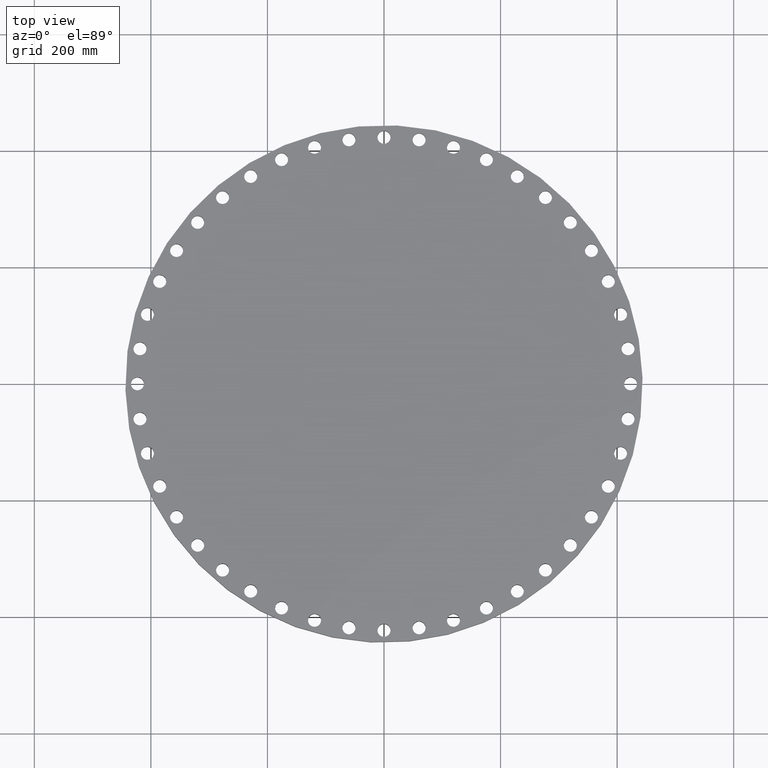
[diagram: clean part render]
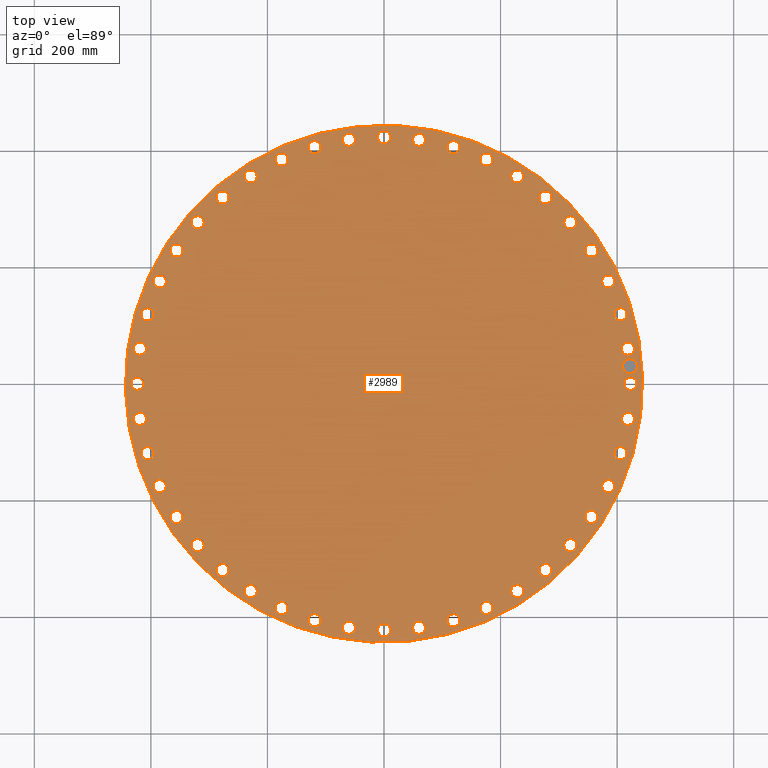
[diagram: same view with one face highlighted and labeled with its STEP entity id]
A machine part, top view. The second image highlights one B-rep face of the part: STEP entity #2989.
In plain terms, the highlighted planar face has unit normal (0, 0, -1).
Its self-contained STEP definition (entity closure, byte-faithful):
#65=AXIS2_PLACEMENT_3D('Circle Axis2P3D',#63,#64,$) ;
#82=AXIS2_PLACEMENT_3D('Circle Axis2P3D',#80,#81,$) ;
#115=AXIS2_PLACEMENT_3D('Circle Axis2P3D',#113,#114,$) ;
#139=AXIS2_PLACEMENT_3D('Circle Axis2P3D',#137,#138,$) ;
#958=AXIS2_PLACEMENT_3D('Circle Axis2P3D',#956,#957,$) ;
#970=AXIS2_PLACEMENT_3D('Circle Axis2P3D',#968,#969,$) ;
#1001=AXIS2_PLACEMENT_3D('Circle Axis2P3D',#999,#1000,$) ;
#1013=AXIS2_PLACEMENT_3D('Circle Axis2P3D',#1011,#1012,$) ;
#1044=AXIS2_PLACEMENT_3D('Circle Axis2P3D',#1042,#1043,$) ;
#1056=AXIS2_PLACEMENT_3D('Circle Axis2P3D',#1054,#1055,$) ;
#1087=AXIS2_PLACEMENT_3D('Circle Axis2P3D',#1085,#1086,$) ;
#1099=AXIS2_PLACEMENT_3D('Circle Axis2P3D',#1097,#1098,$) ;
#1130=AXIS2_PLACEMENT_3D('Circle Axis2P3D',#1128,#1129,$) ;
#1142=AXIS2_PLACEMENT_3D('Circle Axis2P3D',#1140,#1141,$) ;
#1173=AXIS2_PLACEMENT_3D('Circle Axis2P3D',#1171,#1172,$) ;
#1185=AXIS2_PLACEMENT_3D('Circle Axis2P3D',#1183,#1184,$) ;
#1216=AXIS2_PLACEMENT_3D('Circle Axis2P3D',#1214,#1215,$) ;
#1228=AXIS2_PLACEMENT_3D('Circle Axis2P3D',#1226,#1227,$) ;
#1259=AXIS2_PLACEMENT_3D('Circle Axis2P3D',#1257,#1258,$) ;
#1271=AXIS2_PLACEMENT_3D('Circle Axis2P3D',#1269,#1270,$) ;
#1302=AXIS2_PLACEMENT_3D('Circle Axis2P3D',#1300,#1301,$) ;
#1314=AXIS2_PLACEMENT_3D('Circle Axis2P3D',#1312,#1313,$) ;
#1345=AXIS2_PLACEMENT_3D('Circle Axis2P3D',#1343,#1344,$) ;
#1357=AXIS2_PLACEMENT_3D('Circle Axis2P3D',#1355,#1356,$) ;
#1388=AXIS2_PLACEMENT_3D('Circle Axis2P3D',#1386,#1387,$) ;
#1400=AXIS2_PLACEMENT_3D('Circle Axis2P3D',#1398,#1399,$) ;
#1431=AXIS2_PLACEMENT_3D('Circle Axis2P3D',#1429,#1430,$) ;
#1443=AXIS2_PLACEMENT_3D('Circle Axis2P3D',#1441,#1442,$) ;
#1474=AXIS2_PLACEMENT_3D('Circle Axis2P3D',#1472,#1473,$) ;
#1486=AXIS2_PLACEMENT_3D('Circle Axis2P3D',#1484,#1485,$) ;
#1517=AXIS2_PLACEMENT_3D('Circle Axis2P3D',#1515,#1516,$) ;
#1529=AXIS2_PLACEMENT_3D('Circle Axis2P3D',#1527,#1528,$) ;
#1560=AXIS2_PLACEMENT_3D('Circle Axis2P3D',#1558,#1559,$) ;
#1572=AXIS2_PLACEMENT_3D('Circle Axis2P3D',#1570,#1571,$) ;
#1603=AXIS2_PLACEMENT_3D('Circle Axis2P3D',#1601,#1602,$) ;
#1615=AXIS2_PLACEMENT_3D('Circle Axis2P3D',#1613,#1614,$) ;
#1646=AXIS2_PLACEMENT_3D('Circle Axis2P3D',#1644,#1645,$) ;
#1658=AXIS2_PLACEMENT_3D('Circle Axis2P3D',#1656,#1657,$) ;
#1689=AXIS2_PLACEMENT_3D('Circle Axis2P3D',#1687,#1688,$) ;
#1701=AXIS2_PLACEMENT_3D('Circle Axis2P3D',#1699,#1700,$) ;
#1732=AXIS2_PLACEMENT_3D('Circle Axis2P3D',#1730,#1731,$) ;
#1744=AXIS2_PLACEMENT_3D('Circle Axis2P3D',#1742,#1743,$) ;
#1775=AXIS2_PLACEMENT_3D('Circle Axis2P3D',#1773,#1774,$) ;
#1787=AXIS2_PLACEMENT_3D('Circle Axis2P3D',#1785,#1786,$) ;
#1818=AXIS2_PLACEMENT_3D('Circle Axis2P3D',#1816,#1817,$) ;
#1830=AXIS2_PLACEMENT_3D('Circle Axis2P3D',#1828,#1829,$) ;
#1861=AXIS2_PLACEMENT_3D('Circle Axis2P3D',#1859,#1860,$) ;
#1873=AXIS2_PLACEMENT_3D('Circle Axis2P3D',#1871,#1872,$) ;
#1904=AXIS2_PLACEMENT_3D('Circle Axis2P3D',#1902,#1903,$) ;
#1916=AXIS2_PLACEMENT_3D('Circle Axis2P3D',#1914,#1915,$) ;
#1947=AXIS2_PLACEMENT_3D('Circle Axis2P3D',#1945,#1946,$) ;
#1959=AXIS2_PLACEMENT_3D('Circle Axis2P3D',#1957,#1958,$) ;
#1990=AXIS2_PLACEMENT_3D('Circle Axis2P3D',#1988,#1989,$) ;
#2002=AXIS2_PLACEMENT_3D('Circle Axis2P3D',#2000,#2001,$) ;
#2033=AXIS2_PLACEMENT_3D('Circle Axis2P3D',#2031,#2032,$) ;
#2045=AXIS2_PLACEMENT_3D('Circle Axis2P3D',#2043,#2044,$) ;
#2076=AXIS2_PLACEMENT_3D('Circle Axis2P3D',#2074,#2075,$) ;
#2088=AXIS2_PLACEMENT_3D('Circle Axis2P3D',#2086,#2087,$) ;
#2119=AXIS2_PLACEMENT_3D('Circle Axis2P3D',#2117,#2118,$) ;
#2131=AXIS2_PLACEMENT_3D('Circle Axis2P3D',#2129,#2130,$) ;
#2162=AXIS2_PLACEMENT_3D('Circle Axis2P3D',#2160,#2161,$) ;
#2174=AXIS2_PLACEMENT_3D('Circle Axis2P3D',#2172,#2173,$) ;
#2205=AXIS2_PLACEMENT_3D('Circle Axis2P3D',#2203,#2204,$) ;
#2217=AXIS2_PLACEMENT_3D('Circle Axis2P3D',#2215,#2216,$) ;
#2248=AXIS2_PLACEMENT_3D('Circle Axis2P3D',#2246,#2247,$) ;
#2260=AXIS2_PLACEMENT_3D('Circle Axis2P3D',#2258,#2259,$) ;
#2291=AXIS2_PLACEMENT_3D('Circle Axis2P3D',#2289,#2290,$) ;
#2303=AXIS2_PLACEMENT_3D('Circle Axis2P3D',#2301,#2302,$) ;
#2334=AXIS2_PLACEMENT_3D('Circle Axis2P3D',#2332,#2333,$) ;
#2346=AXIS2_PLACEMENT_3D('Circle Axis2P3D',#2344,#2345,$) ;
#2377=AXIS2_PLACEMENT_3D('Circle Axis2P3D',#2375,#2376,$) ;
#2389=AXIS2_PLACEMENT_3D('Circle Axis2P3D',#2387,#2388,$) ;
#2420=AXIS2_PLACEMENT_3D('Circle Axis2P3D',#2418,#2419,$) ;
#2432=AXIS2_PLACEMENT_3D('Circle Axis2P3D',#2430,#2431,$) ;
#2463=AXIS2_PLACEMENT_3D('Circle Axis2P3D',#2461,#2462,$) ;
#2475=AXIS2_PLACEMENT_3D('Circle Axis2P3D',#2473,#2474,$) ;
#2506=AXIS2_PLACEMENT_3D('Circle Axis2P3D',#2504,#2505,$) ;
#2518=AXIS2_PLACEMENT_3D('Circle Axis2P3D',#2516,#2517,$) ;
#2549=AXIS2_PLACEMENT_3D('Circle Axis2P3D',#2547,#2548,$) ;
#2561=AXIS2_PLACEMENT_3D('Circle Axis2P3D',#2559,#2560,$) ;
#2592=AXIS2_PLACEMENT_3D('Circle Axis2P3D',#2590,#2591,$) ;
#2604=AXIS2_PLACEMENT_3D('Circle Axis2P3D',#2602,#2603,$) ;
#2635=AXIS2_PLACEMENT_3D('Circle Axis2P3D',#2633,#2634,$) ;
#2647=AXIS2_PLACEMENT_3D('Circle Axis2P3D',#2645,#2646,$) ;
#2678=AXIS2_PLACEMENT_3D('Circle Axis2P3D',#2676,#2677,$) ;
#2690=AXIS2_PLACEMENT_3D('Circle Axis2P3D',#2688,#2689,$) ;
#2721=AXIS2_PLACEMENT_3D('Circle Axis2P3D',#2719,#2720,$) ;
#2733=AXIS2_PLACEMENT_3D('Circle Axis2P3D',#2731,#2732,$) ;
#2764=AXIS2_PLACEMENT_3D('Circle Axis2P3D',#2762,#2763,$) ;
#2776=AXIS2_PLACEMENT_3D('Circle Axis2P3D',#2774,#2775,$) ;
#2789=AXIS2_PLACEMENT_3D('Plane Axis2P3D',#2786,#2787,#2788) ;
#2973=AXIS2_PLACEMENT_3D('Circle Axis2P3D',#2971,#2972,$) ;
#2982=AXIS2_PLACEMENT_3D('Circle Axis2P3D',#2980,#2981,$) ;
#46=CARTESIAN_POINT('Vertex',(16.2688636728,0.210947236987,1.94000000001)) ;
#60=CARTESIAN_POINT('Vertex',(17.0411363273,-0.210947236987,1.94000000001)) ;
#63=CARTESIAN_POINT('Axis2P3D Location',(16.6550000001,0.,1.94000000001)) ;
#80=CARTESIAN_POINT('Axis2P3D Location',(16.6550000001,0.,1.94000000001)) ;
#110=CARTESIAN_POINT('Vertex',(8.37556415945,15.3313673563,1.94000000001)) ;
#113=CARTESIAN_POINT('Axis2P3D Location',(0.,0.,1.94000000001)) ;
#117=CARTESIAN_POINT('Vertex',(-8.37556415945,-15.3313673563,1.94000000001)) ;
#137=CARTESIAN_POINT('Axis2P3D Location',(0.,0.,1.94000000001)) ;
#946=CARTESIAN_POINT('Vertex',(-16.1332910203,2.10650060421,1.94000000001)) ;
#953=CARTESIAN_POINT('Vertex',(-16.8376612089,2.63400665869,1.94000000001)) ;
#956=CARTESIAN_POINT('Axis2P3D Location',(-16.4854761146,2.37025363145,1.94000000001)) ;
#968=CARTESIAN_POINT('Axis2P3D Location',(-16.4854761146,2.37025363145,1.94000000001)) ;
#989=CARTESIAN_POINT('Vertex',(15.6692910872,-4.38106616776,1.94000000001)) ;
#996=CARTESIAN_POINT('Vertex',(16.291419864,-5.00344530067,1.94000000001)) ;
#999=CARTESIAN_POINT('Axis2P3D Location',(15.9803554756,-4.69225573421,1.94000000001)) ;
#1011=CARTESIAN_POINT('Axis2P3D Location',(15.9803554756,-4.69225573421,1.94000000001)) ;
#1032=CARTESIAN_POINT('Vertex',(-15.6692910872,4.38106616776,1.94000000001)) ;
#1039=CARTESIAN_POINT('Vertex',(-16.291419864,5.00344530067,1.94000000001)) ;
#1042=CARTESIAN_POINT('Axis2P3D Location',(-15.9803554756,4.69225573421,1.94000000001)) ;
#1054=CARTESIAN_POINT('Axis2P3D Location',(-15.9803554756,4.69225573421,1.94000000001)) ;
#1075=CARTESIAN_POINT('Vertex',(14.8863095741,-6.56644585808,1.94000000001)) ;
#1082=CARTESIAN_POINT('Vertex',(15.4135321913,-7.27102822507,1.94000000001)) ;
#1085=CARTESIAN_POINT('Axis2P3D Location',(15.1499208827,-6.91873704157,1.94000000001)) ;
#1097=CARTESIAN_POINT('Axis2P3D Location',(15.1499208827,-6.91873704157,1.94000000001)) ;
#1118=CARTESIAN_POINT('Vertex',(-14.8863095741,6.56644585808,1.94000000001)) ;
#1125=CARTESIAN_POINT('Vertex',(-15.4135321913,7.27102822507,1.94000000001)) ;
#1128=CARTESIAN_POINT('Axis2P3D Location',(-15.1499208827,6.91873704157,1.94000000001)) ;
#1140=CARTESIAN_POINT('Axis2P3D Location',(-15.1499208827,6.91873704157,1.94000000001)) ;
#1161=CARTESIAN_POINT('Vertex',(13.8002857266,-8.6181516468,1.94000000001)) ;
#1168=CARTESIAN_POINT('Vertex',(14.2218694522,-9.39059398272,1.94000000001)) ;
#1171=CARTESIAN_POINT('Axis2P3D Location',(14.0110775894,-9.00437281476,1.94000000001)) ;
#1183=CARTESIAN_POINT('Axis2P3D Location',(14.0110775894,-9.00437281476,1.94000000001)) ;
#1204=CARTESIAN_POINT('Vertex',(-13.8002857266,8.6181516468,1.94000000001)) ;
#1211=CARTESIAN_POINT('Vertex',(-14.2218694522,9.39059398272,1.94000000001)) ;
#1214=CARTESIAN_POINT('Axis2P3D Location',(-14.0110775894,9.00437281476,1.94000000001)) ;
#1226=CARTESIAN_POINT('Axis2P3D Location',(-14.0110775894,9.00437281476,1.94000000001)) ;
#1247=CARTESIAN_POINT('Vertex',(12.4333278584,-10.4944167207,1.94000000001)) ;
#1254=CARTESIAN_POINT('Vertex',(12.7406904634,-11.3189943271,1.94000000001)) ;
#1257=CARTESIAN_POINT('Axis2P3D Location',(12.5870091609,-10.9067055239,1.94000000001)) ;
#1269=CARTESIAN_POINT('Axis2P3D Location',(12.5870091609,-10.9067055239,1.94000000001)) ;
#1290=CARTESIAN_POINT('Vertex',(-12.4333278584,10.4944167207,1.94000000001)) ;
#1297=CARTESIAN_POINT('Vertex',(-12.7406904634,11.3189943271,1.94000000001)) ;
#1300=CARTESIAN_POINT('Axis2P3D Location',(-12.5870091609,10.9067055239,1.94000000001)) ;
#1312=CARTESIAN_POINT('Axis2P3D Location',(-12.5870091609,10.9067055239,1.94000000001)) ;
#1333=CARTESIAN_POINT('Vertex',(10.8132632898,-12.1570457335,1.94000000001)) ;
#1340=CARTESIAN_POINT('Vertex',(11.000147758,-13.0169725883,1.94000000001)) ;
#1343=CARTESIAN_POINT('Axis2P3D Location',(10.9067055239,-12.5870091609,1.94000000001)) ;
#1355=CARTESIAN_POINT('Axis2P3D Location',(10.9067055239,-12.5870091609,1.94000000001)) ;
#1376=CARTESIAN_POINT('Vertex',(-10.8132632898,12.1570457335,1.94000000001)) ;
#1383=CARTESIAN_POINT('Vertex',(-11.000147758,13.0169725883,1.94000000001)) ;
#1386=CARTESIAN_POINT('Axis2P3D Location',(-10.9067055239,12.5870091609,1.94000000001)) ;
#1398=CARTESIAN_POINT('Axis2P3D Location',(-10.9067055239,12.5870091609,1.94000000001)) ;
#1419=CARTESIAN_POINT('Vertex',(8.97307186351,-13.5721923533,1.94000000001)) ;
#1426=CARTESIAN_POINT('Vertex',(9.03567376601,-14.4499628254,1.94000000001)) ;
#1429=CARTESIAN_POINT('Axis2P3D Location',(9.00437281476,-14.0110775894,1.94000000001)) ;
#1441=CARTESIAN_POINT('Axis2P3D Location',(9.00437281476,-14.0110775894,1.94000000001)) ;
#1462=CARTESIAN_POINT('Vertex',(-8.97307186351,13.5721923533,1.94000000001)) ;
#1469=CARTESIAN_POINT('Vertex',(-9.03567376601,14.4499628254,1.94000000001)) ;
#1472=CARTESIAN_POINT('Axis2P3D Location',(-9.00437281476,14.0110775894,1.94000000001)) ;
#1484=CARTESIAN_POINT('Axis2P3D Location',(-9.00437281476,14.0110775894,1.94000000001)) ;
#1505=CARTESIAN_POINT('Vertex',(6.95021457027,-14.7110482757,1.94000000001)) ;
#1512=CARTESIAN_POINT('Vertex',(6.88725951288,-15.5887934897,1.94000000001)) ;
#1515=CARTESIAN_POINT('Axis2P3D Location',(6.91873704157,-15.1499208827,1.94000000001)) ;
#1527=CARTESIAN_POINT('Axis2P3D Location',(6.91873704157,-15.1499208827,1.94000000001)) ;
#1548=CARTESIAN_POINT('Vertex',(-6.95021457027,14.7110482757,1.94000000001)) ;
#1555=CARTESIAN_POINT('Vertex',(-6.88725951288,15.5887934897,1.94000000001)) ;
#1558=CARTESIAN_POINT('Axis2P3D Location',(-6.91873704157,15.1499208827,1.94000000001)) ;
#1570=CARTESIAN_POINT('Axis2P3D Location',(-6.91873704157,15.1499208827,1.94000000001)) ;
#1591=CARTESIAN_POINT('Vertex',(4.78587095114,-15.5504296783,1.94000000001)) ;
#1598=CARTESIAN_POINT('Vertex',(4.59864051728,-16.4102812729,1.94000000001)) ;
#1601=CARTESIAN_POINT('Axis2P3D Location',(4.69225573421,-15.9803554756,1.94000000001)) ;
#1613=CARTESIAN_POINT('Axis2P3D Location',(4.69225573421,-15.9803554756,1.94000000001)) ;
#1634=CARTESIAN_POINT('Vertex',(-4.78587095114,15.5504296783,1.94000000001)) ;
#1641=CARTESIAN_POINT('Vertex',(-4.59864051728,16.4102812729,1.94000000001)) ;
#1644=CARTESIAN_POINT('Axis2P3D Location',(-4.69225573421,15.9803554756,1.94000000001)) ;
#1656=CARTESIAN_POINT('Axis2P3D Location',(-4.69225573421,15.9803554756,1.94000000001)) ;
#1677=CARTESIAN_POINT('Vertex',(2.52410080076,-16.0732491765,1.94000000001)) ;
#1684=CARTESIAN_POINT('Vertex',(2.21640646214,-16.8977030527,1.94000000001)) ;
#1687=CARTESIAN_POINT('Axis2P3D Location',(2.37025363145,-16.4854761146,1.94000000001)) ;
#1699=CARTESIAN_POINT('Axis2P3D Location',(2.37025363145,-16.4854761146,1.94000000001)) ;
#1720=CARTESIAN_POINT('Vertex',(-2.52410080076,16.0732491765,1.94000000001)) ;
#1727=CARTESIAN_POINT('Vertex',(-2.21640646214,16.8977030527,1.94000000001)) ;
#1730=CARTESIAN_POINT('Axis2P3D Location',(-2.37025363145,16.4854761146,1.94000000001)) ;
#1742=CARTESIAN_POINT('Axis2P3D Location',(-2.37025363145,16.4854761146,1.94000000001)) ;
#1763=CARTESIAN_POINT('Vertex',(0.210947236987,-16.2688636728,1.94000000001)) ;
#1770=CARTESIAN_POINT('Vertex',(-0.210947236987,-17.0411363273,1.94000000001)) ;
#1773=CARTESIAN_POINT('Axis2P3D Location',(-1.21810525442E-015,-16.6550000001,1.94000000001)) ;
#1785=CARTESIAN_POINT('Axis2P3D Location',(-1.21810525442E-015,-16.6550000001,1.94000000001)) ;
#1806=CARTESIAN_POINT('Vertex',(-0.210947236987,16.2688636728,1.94000000001)) ;
#1813=CARTESIAN_POINT('Vertex',(0.210947236987,17.0411363273,1.94000000001)) ;
#1816=CARTESIAN_POINT('Axis2P3D Location',(-8.21543989572E-016,16.6550000001,1.94000000001)) ;
#1828=CARTESIAN_POINT('Axis2P3D Location',(-8.21543989572E-016,16.6550000001,1.94000000001)) ;
#1849=CARTESIAN_POINT('Vertex',(-2.10650060421,-16.1332910203,1.94000000001)) ;
#1856=CARTESIAN_POINT('Vertex',(-2.63400665869,-16.8376612089,1.94000000001)) ;
#1859=CARTESIAN_POINT('Axis2P3D Location',(-2.37025363145,-16.4854761146,1.94000000001)) ;
#1871=CARTESIAN_POINT('Axis2P3D Location',(-2.37025363145,-16.4854761146,1.94000000001)) ;
#1892=CARTESIAN_POINT('Vertex',(2.10650060421,16.1332910203,1.94000000001)) ;
#1899=CARTESIAN_POINT('Vertex',(2.63400665869,16.8376612089,1.94000000001)) ;
#1902=CARTESIAN_POINT('Axis2P3D Location',(2.37025363145,16.4854761146,1.94000000001)) ;
#1914=CARTESIAN_POINT('Axis2P3D Location',(2.37025363145,16.4854761146,1.94000000001)) ;
#1935=CARTESIAN_POINT('Vertex',(-4.38106616776,-15.6692910872,1.94000000001)) ;
#1942=CARTESIAN_POINT('Vertex',(-5.00344530067,-16.291419864,1.94000000001)) ;
#1945=CARTESIAN_POINT('Axis2P3D Location',(-4.69225573421,-15.9803554756,1.94000000001)) ;
#1957=CARTESIAN_POINT('Axis2P3D Location',(-4.69225573421,-15.9803554756,1.94000000001)) ;
#1978=CARTESIAN_POINT('Vertex',(4.38106616776,15.6692910872,1.94000000001)) ;
#1985=CARTESIAN_POINT('Vertex',(5.00344530067,16.291419864,1.94000000001)) ;
#1988=CARTESIAN_POINT('Axis2P3D Location',(4.69225573421,15.9803554756,1.94000000001)) ;
#2000=CARTESIAN_POINT('Axis2P3D Location',(4.69225573421,15.9803554756,1.94000000001)) ;
#2021=CARTESIAN_POINT('Vertex',(-6.56644585808,-14.8863095741,1.94000000001)) ;
#2028=CARTESIAN_POINT('Vertex',(-7.27102822507,-15.4135321913,1.94000000001)) ;
#2031=CARTESIAN_POINT('Axis2P3D Location',(-6.91873704157,-15.1499208827,1.94000000001)) ;
#2043=CARTESIAN_POINT('Axis2P3D Location',(-6.91873704157,-15.1499208827,1.94000000001)) ;
#2064=CARTESIAN_POINT('Vertex',(6.56644585808,14.8863095741,1.94000000001)) ;
#2071=CARTESIAN_POINT('Vertex',(7.27102822507,15.4135321913,1.94000000001)) ;
#2074=CARTESIAN_POINT('Axis2P3D Location',(6.91873704157,15.1499208827,1.94000000001)) ;
#2086=CARTESIAN_POINT('Axis2P3D Location',(6.91873704157,15.1499208827,1.94000000001)) ;
#2107=CARTESIAN_POINT('Vertex',(-8.6181516468,-13.8002857266,1.94000000001)) ;
#2114=CARTESIAN_POINT('Vertex',(-9.39059398272,-14.2218694522,1.94000000001)) ;
#2117=CARTESIAN_POINT('Axis2P3D Location',(-9.00437281476,-14.0110775894,1.94000000001)) ;
#2129=CARTESIAN_POINT('Axis2P3D Location',(-9.00437281476,-14.0110775894,1.94000000001)) ;
#2150=CARTESIAN_POINT('Vertex',(8.6181516468,13.8002857266,1.94000000001)) ;
#2157=CARTESIAN_POINT('Vertex',(9.39059398272,14.2218694522,1.94000000001)) ;
#2160=CARTESIAN_POINT('Axis2P3D Location',(9.00437281476,14.0110775894,1.94000000001)) ;
#2172=CARTESIAN_POINT('Axis2P3D Location',(9.00437281476,14.0110775894,1.94000000001)) ;
#2193=CARTESIAN_POINT('Vertex',(-10.4944167207,-12.4333278584,1.94000000001)) ;
#2200=CARTESIAN_POINT('Vertex',(-11.3189943271,-12.7406904634,1.94000000001)) ;
#2203=CARTESIAN_POINT('Axis2P3D Location',(-10.9067055239,-12.5870091609,1.94000000001)) ;
#2215=CARTESIAN_POINT('Axis2P3D Location',(-10.9067055239,-12.5870091609,1.94000000001)) ;
#2236=CARTESIAN_POINT('Vertex',(10.4944167207,12.4333278584,1.94000000001)) ;
#2243=CARTESIAN_POINT('Vertex',(11.3189943271,12.7406904634,1.94000000001)) ;
#2246=CARTESIAN_POINT('Axis2P3D Location',(10.9067055239,12.5870091609,1.94000000001)) ;
#2258=CARTESIAN_POINT('Axis2P3D Location',(10.9067055239,12.5870091609,1.94000000001)) ;
#2279=CARTESIAN_POINT('Vertex',(-12.1570457335,-10.8132632898,1.94000000001)) ;
#2286=CARTESIAN_POINT('Vertex',(-13.0169725883,-11.000147758,1.94000000001)) ;
#2289=CARTESIAN_POINT('Axis2P3D Location',(-12.5870091609,-10.9067055239,1.94000000001)) ;
#2301=CARTESIAN_POINT('Axis2P3D Location',(-12.5870091609,-10.9067055239,1.94000000001)) ;
#2322=CARTESIAN_POINT('Vertex',(12.1570457335,10.8132632898,1.94000000001)) ;
#2329=CARTESIAN_POINT('Vertex',(13.0169725883,11.000147758,1.94000000001)) ;
#2332=CARTESIAN_POINT('Axis2P3D Location',(12.5870091609,10.9067055239,1.94000000001)) ;
#2344=CARTESIAN_POINT('Axis2P3D Location',(12.5870091609,10.9067055239,1.94000000001)) ;
#2365=CARTESIAN_POINT('Vertex',(-13.5721923533,-8.97307186351,1.94000000001)) ;
#2372=CARTESIAN_POINT('Vertex',(-14.4499628254,-9.03567376601,1.94000000001)) ;
#2375=CARTESIAN_POINT('Axis2P3D Location',(-14.0110775894,-9.00437281476,1.94000000001)) ;
#2387=CARTESIAN_POINT('Axis2P3D Location',(-14.0110775894,-9.00437281476,1.94000000001)) ;
#2408=CARTESIAN_POINT('Vertex',(13.5721923533,8.97307186351,1.94000000001)) ;
#2415=CARTESIAN_POINT('Vertex',(14.4499628254,9.03567376601,1.94000000001)) ;
#2418=CARTESIAN_POINT('Axis2P3D Location',(14.0110775894,9.00437281476,1.94000000001)) ;
#2430=CARTESIAN_POINT('Axis2P3D Location',(14.0110775894,9.00437281476,1.94000000001)) ;
#2451=CARTESIAN_POINT('Vertex',(-14.7110482757,-6.95021457027,1.94000000001)) ;
#2458=CARTESIAN_POINT('Vertex',(-15.5887934897,-6.88725951288,1.94000000001)) ;
#2461=CARTESIAN_POINT('Axis2P3D Location',(-15.1499208827,-6.91873704157,1.94000000001)) ;
#2473=CARTESIAN_POINT('Axis2P3D Location',(-15.1499208827,-6.91873704157,1.94000000001)) ;
#2494=CARTESIAN_POINT('Vertex',(14.7110482757,6.95021457027,1.94000000001)) ;
#2501=CARTESIAN_POINT('Vertex',(15.5887934897,6.88725951288,1.94000000001)) ;
#2504=CARTESIAN_POINT('Axis2P3D Location',(15.1499208827,6.91873704157,1.94000000001)) ;
#2516=CARTESIAN_POINT('Axis2P3D Location',(15.1499208827,6.91873704157,1.94000000001)) ;
#2537=CARTESIAN_POINT('Vertex',(-15.5504296783,-4.78587095114,1.94000000001)) ;
#2544=CARTESIAN_POINT('Vertex',(-16.4102812729,-4.59864051728,1.94000000001)) ;
#2547=CARTESIAN_POINT('Axis2P3D Location',(-15.9803554756,-4.69225573421,1.94000000001)) ;
#2559=CARTESIAN_POINT('Axis2P3D Location',(-15.9803554756,-4.69225573421,1.94000000001)) ;
#2580=CARTESIAN_POINT('Vertex',(15.5504296783,4.78587095114,1.94000000001)) ;
#2587=CARTESIAN_POINT('Vertex',(16.4102812729,4.59864051728,1.94000000001)) ;
#2590=CARTESIAN_POINT('Axis2P3D Location',(15.9803554756,4.69225573421,1.94000000001)) ;
#2602=CARTESIAN_POINT('Axis2P3D Location',(15.9803554756,4.69225573421,1.94000000001)) ;
#2623=CARTESIAN_POINT('Vertex',(-16.0732491765,-2.52410080076,1.94000000001)) ;
#2630=CARTESIAN_POINT('Vertex',(-16.8977030527,-2.21640646214,1.94000000001)) ;
#2633=CARTESIAN_POINT('Axis2P3D Location',(-16.4854761146,-2.37025363145,1.94000000001)) ;
#2645=CARTESIAN_POINT('Axis2P3D Location',(-16.4854761146,-2.37025363145,1.94000000001)) ;
#2666=CARTESIAN_POINT('Vertex',(16.0732491765,2.52410080076,1.94000000001)) ;
#2673=CARTESIAN_POINT('Vertex',(16.8977030527,2.21640646214,1.94000000001)) ;
#2676=CARTESIAN_POINT('Axis2P3D Location',(16.4854761146,2.37025363145,1.94000000001)) ;
#2688=CARTESIAN_POINT('Axis2P3D Location',(16.4854761146,2.37025363145,1.94000000001)) ;
#2709=CARTESIAN_POINT('Vertex',(-16.2688636728,-0.210947236987,1.94000000001)) ;
#2716=CARTESIAN_POINT('Vertex',(-17.0411363273,0.210947236987,1.94000000001)) ;
#2719=CARTESIAN_POINT('Axis2P3D Location',(-16.6550000001,-2.03964924399E-015,1.94000000001)) ;
#2731=CARTESIAN_POINT('Axis2P3D Location',(-16.6550000001,-2.03964924399E-015,1.94000000001)) ;
#2752=CARTESIAN_POINT('Vertex',(16.1332910203,-2.10650060421,1.94000000001)) ;
#2759=CARTESIAN_POINT('Vertex',(16.8376612089,-2.63400665869,1.94000000001)) ;
#2762=CARTESIAN_POINT('Axis2P3D Location',(16.4854761146,-2.37025363145,1.94000000001)) ;
#2774=CARTESIAN_POINT('Axis2P3D Location',(16.4854761146,-2.37025363145,1.94000000001)) ;
#2786=CARTESIAN_POINT('Axis2P3D Location',(0.,17.4700000001,1.94000000001)) ;
#2971=CARTESIAN_POINT('Axis2P3D Location',(16.6125649689,1.18815409619,1.94000000001)) ;
#2975=CARTESIAN_POINT('Vertex',(16.5768953773,1.6868801535,1.94000000001)) ;
#2977=CARTESIAN_POINT('Vertex',(16.6482345605,0.689428038881,1.94000000001)) ;
#2980=CARTESIAN_POINT('Axis2P3D Location',(16.6125649689,1.18815409619,1.94000000001)) ;
#64=DIRECTION('Axis2P3D Direction',(0.,-0.,-0.0393700787402)) ;
#81=DIRECTION('Axis2P3D Direction',(0.,-0.,-0.0393700787402)) ;
#114=DIRECTION('Axis2P3D Direction',(0.,0.,-0.0393700787402)) ;
#138=DIRECTION('Axis2P3D Direction',(0.,0.,-0.0393700787402)) ;
#957=DIRECTION('Axis2P3D Direction',(0.,0.,-0.0393700787402)) ;
#969=DIRECTION('Axis2P3D Direction',(0.,0.,-0.0393700787402)) ;
#1000=DIRECTION('Axis2P3D Direction',(0.,-0.,-0.0393700787402)) ;
#1012=DIRECTION('Axis2P3D Direction',(0.,-0.,-0.0393700787402)) ;
#1043=DIRECTION('Axis2P3D Direction',(0.,0.,-0.0393700787402)) ;
#1055=DIRECTION('Axis2P3D Direction',(0.,0.,-0.0393700787402)) ;
#1086=DIRECTION('Axis2P3D Direction',(0.,-0.,-0.0393700787402)) ;
#1098=DIRECTION('Axis2P3D Direction',(0.,-0.,-0.0393700787402)) ;
#1129=DIRECTION('Axis2P3D Direction',(0.,0.,-0.0393700787402)) ;
#1141=DIRECTION('Axis2P3D Direction',(0.,0.,-0.0393700787402)) ;
#1172=DIRECTION('Axis2P3D Direction',(0.,-0.,-0.0393700787402)) ;
#1184=DIRECTION('Axis2P3D Direction',(0.,-0.,-0.0393700787402)) ;
#1215=DIRECTION('Axis2P3D Direction',(0.,0.,-0.0393700787402)) ;
#1227=DIRECTION('Axis2P3D Direction',(0.,0.,-0.0393700787402)) ;
#1258=DIRECTION('Axis2P3D Direction',(0.,-0.,-0.0393700787402)) ;
#1270=DIRECTION('Axis2P3D Direction',(0.,-0.,-0.0393700787402)) ;
#1301=DIRECTION('Axis2P3D Direction',(0.,0.,-0.0393700787402)) ;
#1313=DIRECTION('Axis2P3D Direction',(0.,0.,-0.0393700787402)) ;
#1344=DIRECTION('Axis2P3D Direction',(0.,-0.,-0.0393700787402)) ;
#1356=DIRECTION('Axis2P3D Direction',(0.,-0.,-0.0393700787402)) ;
#1387=DIRECTION('Axis2P3D Direction',(0.,0.,-0.0393700787402)) ;
#1399=DIRECTION('Axis2P3D Direction',(0.,0.,-0.0393700787402)) ;
#1430=DIRECTION('Axis2P3D Direction',(0.,-0.,-0.0393700787402)) ;
#1442=DIRECTION('Axis2P3D Direction',(0.,-0.,-0.0393700787402)) ;
#1473=DIRECTION('Axis2P3D Direction',(0.,0.,-0.0393700787402)) ;
#1485=DIRECTION('Axis2P3D Direction',(0.,0.,-0.0393700787402)) ;
#1516=DIRECTION('Axis2P3D Direction',(0.,-0.,-0.0393700787402)) ;
#1528=DIRECTION('Axis2P3D Direction',(0.,-0.,-0.0393700787402)) ;
#1559=DIRECTION('Axis2P3D Direction',(0.,0.,-0.0393700787402)) ;
#1571=DIRECTION('Axis2P3D Direction',(0.,0.,-0.0393700787402)) ;
#1602=DIRECTION('Axis2P3D Direction',(0.,-0.,-0.0393700787402)) ;
#1614=DIRECTION('Axis2P3D Direction',(0.,-0.,-0.0393700787402)) ;
#1645=DIRECTION('Axis2P3D Direction',(0.,0.,-0.0393700787402)) ;
#1657=DIRECTION('Axis2P3D Direction',(0.,0.,-0.0393700787402)) ;
#1688=DIRECTION('Axis2P3D Direction',(0.,-0.,-0.0393700787402)) ;
#1700=DIRECTION('Axis2P3D Direction',(0.,-0.,-0.0393700787402)) ;
#1731=DIRECTION('Axis2P3D Direction',(0.,0.,-0.0393700787402)) ;
#1743=DIRECTION('Axis2P3D Direction',(0.,0.,-0.0393700787402)) ;
#1774=DIRECTION('Axis2P3D Direction',(0.,-0.,-0.0393700787402)) ;
#1786=DIRECTION('Axis2P3D Direction',(0.,-0.,-0.0393700787402)) ;
#1817=DIRECTION('Axis2P3D Direction',(0.,0.,-0.0393700787402)) ;
#1829=DIRECTION('Axis2P3D Direction',(0.,0.,-0.0393700787402)) ;
#1860=DIRECTION('Axis2P3D Direction',(-0.,0.,-0.0393700787402)) ;
#1872=DIRECTION('Axis2P3D Direction',(-0.,0.,-0.0393700787402)) ;
#1903=DIRECTION('Axis2P3D Direction',(0.,0.,-0.0393700787402)) ;
#1915=DIRECTION('Axis2P3D Direction',(0.,0.,-0.0393700787402)) ;
#1946=DIRECTION('Axis2P3D Direction',(-0.,0.,-0.0393700787402)) ;
#1958=DIRECTION('Axis2P3D Direction',(-0.,0.,-0.0393700787402)) ;
#1989=DIRECTION('Axis2P3D Direction',(0.,0.,-0.0393700787402)) ;
#2001=DIRECTION('Axis2P3D Direction',(0.,0.,-0.0393700787402)) ;
#2032=DIRECTION('Axis2P3D Direction',(-0.,0.,-0.0393700787402)) ;
#2044=DIRECTION('Axis2P3D Direction',(-0.,0.,-0.0393700787402)) ;
#2075=DIRECTION('Axis2P3D Direction',(0.,0.,-0.0393700787402)) ;
#2087=DIRECTION('Axis2P3D Direction',(0.,0.,-0.0393700787402)) ;
#2118=DIRECTION('Axis2P3D Direction',(-0.,0.,-0.0393700787402)) ;
#2130=DIRECTION('Axis2P3D Direction',(-0.,0.,-0.0393700787402)) ;
#2161=DIRECTION('Axis2P3D Direction',(0.,0.,-0.0393700787402)) ;
#2173=DIRECTION('Axis2P3D Direction',(0.,0.,-0.0393700787402)) ;
#2204=DIRECTION('Axis2P3D Direction',(-0.,0.,-0.0393700787402)) ;
#2216=DIRECTION('Axis2P3D Direction',(-0.,0.,-0.0393700787402)) ;
#2247=DIRECTION('Axis2P3D Direction',(0.,0.,-0.0393700787402)) ;
#2259=DIRECTION('Axis2P3D Direction',(0.,0.,-0.0393700787402)) ;
#2290=DIRECTION('Axis2P3D Direction',(-0.,0.,-0.0393700787402)) ;
#2302=DIRECTION('Axis2P3D Direction',(-0.,0.,-0.0393700787402)) ;
#2333=DIRECTION('Axis2P3D Direction',(0.,0.,-0.0393700787402)) ;
#2345=DIRECTION('Axis2P3D Direction',(0.,0.,-0.0393700787402)) ;
#2376=DIRECTION('Axis2P3D Direction',(-0.,0.,-0.0393700787402)) ;
#2388=DIRECTION('Axis2P3D Direction',(-0.,0.,-0.0393700787402)) ;
#2419=DIRECTION('Axis2P3D Direction',(0.,0.,-0.0393700787402)) ;
#2431=DIRECTION('Axis2P3D Direction',(0.,0.,-0.0393700787402)) ;
#2462=DIRECTION('Axis2P3D Direction',(-0.,0.,-0.0393700787402)) ;
#2474=DIRECTION('Axis2P3D Direction',(-0.,0.,-0.0393700787402)) ;
#2505=DIRECTION('Axis2P3D Direction',(0.,0.,-0.0393700787402)) ;
#2517=DIRECTION('Axis2P3D Direction',(0.,0.,-0.0393700787402)) ;
#2548=DIRECTION('Axis2P3D Direction',(-0.,0.,-0.0393700787402)) ;
#2560=DIRECTION('Axis2P3D Direction',(-0.,0.,-0.0393700787402)) ;
#2591=DIRECTION('Axis2P3D Direction',(0.,0.,-0.0393700787402)) ;
#2603=DIRECTION('Axis2P3D Direction',(0.,0.,-0.0393700787402)) ;
#2634=DIRECTION('Axis2P3D Direction',(-0.,0.,-0.0393700787402)) ;
#2646=DIRECTION('Axis2P3D Direction',(-0.,0.,-0.0393700787402)) ;
#2677=DIRECTION('Axis2P3D Direction',(0.,0.,-0.0393700787402)) ;
#2689=DIRECTION('Axis2P3D Direction',(0.,0.,-0.0393700787402)) ;
#2720=DIRECTION('Axis2P3D Direction',(-0.,0.,-0.0393700787402)) ;
#2732=DIRECTION('Axis2P3D Direction',(-0.,0.,-0.0393700787402)) ;
#2763=DIRECTION('Axis2P3D Direction',(0.,-0.,-0.0393700787402)) ;
#2775=DIRECTION('Axis2P3D Direction',(0.,-0.,-0.0393700787402)) ;
#2787=DIRECTION('Axis2P3D Direction',(0.,0.,-0.0393700787402)) ;
#2788=DIRECTION('Axis2P3D XDirection',(0.0393700787402,0.,0.)) ;
#2972=DIRECTION('Axis2P3D Direction',(0.,0.,-0.0393700787402)) ;
#2981=DIRECTION('Axis2P3D Direction',(0.,0.,-0.0393700787402)) ;
#2792=ORIENTED_EDGE('',*,*,#119,.F.) ;
#2793=ORIENTED_EDGE('',*,*,#141,.F.) ;
#2796=ORIENTED_EDGE('',*,*,#67,.T.) ;
#2797=ORIENTED_EDGE('',*,*,#84,.T.) ;
#2800=ORIENTED_EDGE('',*,*,#2778,.T.) ;
#2801=ORIENTED_EDGE('',*,*,#2766,.T.) ;
#2804=ORIENTED_EDGE('',*,*,#1015,.T.) ;
#2805=ORIENTED_EDGE('',*,*,#1003,.T.) ;
#2808=ORIENTED_EDGE('',*,*,#1101,.T.) ;
#2809=ORIENTED_EDGE('',*,*,#1089,.T.) ;
#2812=ORIENTED_EDGE('',*,*,#1187,.T.) ;
#2813=ORIENTED_EDGE('',*,*,#1175,.T.) ;
#2816=ORIENTED_EDGE('',*,*,#1273,.T.) ;
#2817=ORIENTED_EDGE('',*,*,#1261,.T.) ;
#2820=ORIENTED_EDGE('',*,*,#1359,.T.) ;
#2821=ORIENTED_EDGE('',*,*,#1347,.T.) ;
#2824=ORIENTED_EDGE('',*,*,#1445,.T.) ;
#2825=ORIENTED_EDGE('',*,*,#1433,.T.) ;
#2828=ORIENTED_EDGE('',*,*,#1531,.T.) ;
#2829=ORIENTED_EDGE('',*,*,#1519,.T.) ;
#2832=ORIENTED_EDGE('',*,*,#1617,.T.) ;
#2833=ORIENTED_EDGE('',*,*,#1605,.T.) ;
#2836=ORIENTED_EDGE('',*,*,#1703,.T.) ;
#2837=ORIENTED_EDGE('',*,*,#1691,.T.) ;
#2840=ORIENTED_EDGE('',*,*,#1789,.T.) ;
#2841=ORIENTED_EDGE('',*,*,#1777,.T.) ;
#2844=ORIENTED_EDGE('',*,*,#1875,.T.) ;
#2845=ORIENTED_EDGE('',*,*,#1863,.T.) ;
#2848=ORIENTED_EDGE('',*,*,#1961,.T.) ;
#2849=ORIENTED_EDGE('',*,*,#1949,.T.) ;
#2852=ORIENTED_EDGE('',*,*,#2047,.T.) ;
#2853=ORIENTED_EDGE('',*,*,#2035,.T.) ;
#2856=ORIENTED_EDGE('',*,*,#2133,.T.) ;
#2857=ORIENTED_EDGE('',*,*,#2121,.T.) ;
#2860=ORIENTED_EDGE('',*,*,#2219,.T.) ;
#2861=ORIENTED_EDGE('',*,*,#2207,.T.) ;
#2864=ORIENTED_EDGE('',*,*,#2305,.T.) ;
#2865=ORIENTED_EDGE('',*,*,#2293,.T.) ;
#2868=ORIENTED_EDGE('',*,*,#2391,.T.) ;
#2869=ORIENTED_EDGE('',*,*,#2379,.T.) ;
#2872=ORIENTED_EDGE('',*,*,#2477,.T.) ;
#2873=ORIENTED_EDGE('',*,*,#2465,.T.) ;
#2876=ORIENTED_EDGE('',*,*,#2563,.T.) ;
#2877=ORIENTED_EDGE('',*,*,#2551,.T.) ;
#2880=ORIENTED_EDGE('',*,*,#2649,.T.) ;
#2881=ORIENTED_EDGE('',*,*,#2637,.T.) ;
#2884=ORIENTED_EDGE('',*,*,#2735,.T.) ;
#2885=ORIENTED_EDGE('',*,*,#2723,.T.) ;
#2888=ORIENTED_EDGE('',*,*,#972,.T.) ;
#2889=ORIENTED_EDGE('',*,*,#960,.T.) ;
#2892=ORIENTED_EDGE('',*,*,#1058,.T.) ;
#2893=ORIENTED_EDGE('',*,*,#1046,.T.) ;
#2896=ORIENTED_EDGE('',*,*,#1144,.T.) ;
#2897=ORIENTED_EDGE('',*,*,#1132,.T.) ;
#2900=ORIENTED_EDGE('',*,*,#1230,.T.) ;
#2901=ORIENTED_EDGE('',*,*,#1218,.T.) ;
#2904=ORIENTED_EDGE('',*,*,#1316,.T.) ;
#2905=ORIENTED_EDGE('',*,*,#1304,.T.) ;
#2908=ORIENTED_EDGE('',*,*,#1402,.T.) ;
#2909=ORIENTED_EDGE('',*,*,#1390,.T.) ;
#2912=ORIENTED_EDGE('',*,*,#1488,.T.) ;
#2913=ORIENTED_EDGE('',*,*,#1476,.T.) ;
#2916=ORIENTED_EDGE('',*,*,#1574,.T.) ;
#2917=ORIENTED_EDGE('',*,*,#1562,.T.) ;
#2920=ORIENTED_EDGE('',*,*,#1660,.T.) ;
#2921=ORIENTED_EDGE('',*,*,#1648,.T.) ;
#2924=ORIENTED_EDGE('',*,*,#1746,.T.) ;
#2925=ORIENTED_EDGE('',*,*,#1734,.T.) ;
#2928=ORIENTED_EDGE('',*,*,#1832,.T.) ;
#2929=ORIENTED_EDGE('',*,*,#1820,.T.) ;
#2932=ORIENTED_EDGE('',*,*,#1918,.T.) ;
#2933=ORIENTED_EDGE('',*,*,#1906,.T.) ;
#2936=ORIENTED_EDGE('',*,*,#2004,.T.) ;
#2937=ORIENTED_EDGE('',*,*,#1992,.T.) ;
#2940=ORIENTED_EDGE('',*,*,#2090,.T.) ;
#2941=ORIENTED_EDGE('',*,*,#2078,.T.) ;
#2944=ORIENTED_EDGE('',*,*,#2176,.T.) ;
#2945=ORIENTED_EDGE('',*,*,#2164,.T.) ;
#2948=ORIENTED_EDGE('',*,*,#2262,.T.) ;
#2949=ORIENTED_EDGE('',*,*,#2250,.T.) ;
#2952=ORIENTED_EDGE('',*,*,#2348,.T.) ;
#2953=ORIENTED_EDGE('',*,*,#2336,.T.) ;
#2956=ORIENTED_EDGE('',*,*,#2434,.T.) ;
#2957=ORIENTED_EDGE('',*,*,#2422,.T.) ;
#2960=ORIENTED_EDGE('',*,*,#2520,.T.) ;
#2961=ORIENTED_EDGE('',*,*,#2508,.T.) ;
#2964=ORIENTED_EDGE('',*,*,#2606,.T.) ;
#2965=ORIENTED_EDGE('',*,*,#2594,.T.) ;
#2968=ORIENTED_EDGE('',*,*,#2692,.T.) ;
#2969=ORIENTED_EDGE('',*,*,#2680,.T.) ;
#2986=ORIENTED_EDGE('',*,*,#2979,.T.) ;
#2987=ORIENTED_EDGE('',*,*,#2984,.T.) ;
#2798=FACE_BOUND('',#2795,.T.) ;
#2802=FACE_BOUND('',#2799,.T.) ;
#2806=FACE_BOUND('',#2803,.T.) ;
#2810=FACE_BOUND('',#2807,.T.) ;
#2814=FACE_BOUND('',#2811,.T.) ;
#2818=FACE_BOUND('',#2815,.T.) ;
#2822=FACE_BOUND('',#2819,.T.) ;
#2826=FACE_BOUND('',#2823,.T.) ;
#2830=FACE_BOUND('',#2827,.T.) ;
#2834=FACE_BOUND('',#2831,.T.) ;
#2838=FACE_BOUND('',#2835,.T.) ;
#2842=FACE_BOUND('',#2839,.T.) ;
#2846=FACE_BOUND('',#2843,.T.) ;
#2850=FACE_BOUND('',#2847,.T.) ;
#2854=FACE_BOUND('',#2851,.T.) ;
#2858=FACE_BOUND('',#2855,.T.) ;
#2862=FACE_BOUND('',#2859,.T.) ;
#2866=FACE_BOUND('',#2863,.T.) ;
#2870=FACE_BOUND('',#2867,.T.) ;
#2874=FACE_BOUND('',#2871,.T.) ;
#2878=FACE_BOUND('',#2875,.T.) ;
#2882=FACE_BOUND('',#2879,.T.) ;
#2886=FACE_BOUND('',#2883,.T.) ;
#2890=FACE_BOUND('',#2887,.T.) ;
#2894=FACE_BOUND('',#2891,.T.) ;
#2898=FACE_BOUND('',#2895,.T.) ;
#2902=FACE_BOUND('',#2899,.T.) ;
#2906=FACE_BOUND('',#2903,.T.) ;
#2910=FACE_BOUND('',#2907,.T.) ;
#2914=FACE_BOUND('',#2911,.T.) ;
#2918=FACE_BOUND('',#2915,.T.) ;
#2922=FACE_BOUND('',#2919,.T.) ;
#2926=FACE_BOUND('',#2923,.T.) ;
#2930=FACE_BOUND('',#2927,.T.) ;
#2934=FACE_BOUND('',#2931,.T.) ;
#2938=FACE_BOUND('',#2935,.T.) ;
#2942=FACE_BOUND('',#2939,.T.) ;
#2946=FACE_BOUND('',#2943,.T.) ;
#2950=FACE_BOUND('',#2947,.T.) ;
#2954=FACE_BOUND('',#2951,.T.) ;
#2958=FACE_BOUND('',#2955,.T.) ;
#2962=FACE_BOUND('',#2959,.T.) ;
#2966=FACE_BOUND('',#2963,.T.) ;
#2970=FACE_BOUND('',#2967,.T.) ;
#2988=FACE_BOUND('',#2985,.T.) ;
#2989=ADVANCED_FACE('PartBody',(#2794,#2798,#2802,#2806,#2810,#2814,#2818,#2822,#2826,#2830,#2834,#2838,#2842,#2846,#2850,#2854,#2858,#2862,#2866,#2870,#2874,#2878,#2882,#2886,#2890,#2894,#2898,#2902,#2906,#2910,#2914,#2918,#2922,#2926,#2930,#2934,#2938,#2942,#2946,#2950,#2954,#2958,#2962,#2966,#2970,#2988),#2790,.F.) ;
#66=CIRCLE('generated circle',#65,0.440000000002) ;
#83=CIRCLE('generated circle',#82,0.440000000002) ;
#116=CIRCLE('generated circle',#115,17.4700000001) ;
#140=CIRCLE('generated circle',#139,17.4700000001) ;
#959=CIRCLE('generated circle',#958,0.440000000002) ;
#971=CIRCLE('generated circle',#970,0.440000000002) ;
#1002=CIRCLE('generated circle',#1001,0.440000000002) ;
#1014=CIRCLE('generated circle',#1013,0.440000000002) ;
#1045=CIRCLE('generated circle',#1044,0.440000000002) ;
#1057=CIRCLE('generated circle',#1056,0.440000000002) ;
#1088=CIRCLE('generated circle',#1087,0.440000000002) ;
#1100=CIRCLE('generated circle',#1099,0.440000000002) ;
#1131=CIRCLE('generated circle',#1130,0.440000000002) ;
#1143=CIRCLE('generated circle',#1142,0.440000000002) ;
#1174=CIRCLE('generated circle',#1173,0.440000000002) ;
#1186=CIRCLE('generated circle',#1185,0.440000000002) ;
#1217=CIRCLE('generated circle',#1216,0.440000000002) ;
#1229=CIRCLE('generated circle',#1228,0.440000000002) ;
#1260=CIRCLE('generated circle',#1259,0.440000000002) ;
#1272=CIRCLE('generated circle',#1271,0.440000000002) ;
#1303=CIRCLE('generated circle',#1302,0.440000000002) ;
#1315=CIRCLE('generated circle',#1314,0.440000000002) ;
#1346=CIRCLE('generated circle',#1345,0.440000000002) ;
#1358=CIRCLE('generated circle',#1357,0.440000000002) ;
#1389=CIRCLE('generated circle',#1388,0.440000000002) ;
#1401=CIRCLE('generated circle',#1400,0.440000000002) ;
#1432=CIRCLE('generated circle',#1431,0.440000000002) ;
#1444=CIRCLE('generated circle',#1443,0.440000000002) ;
#1475=CIRCLE('generated circle',#1474,0.440000000002) ;
#1487=CIRCLE('generated circle',#1486,0.440000000002) ;
#1518=CIRCLE('generated circle',#1517,0.440000000002) ;
#1530=CIRCLE('generated circle',#1529,0.440000000002) ;
#1561=CIRCLE('generated circle',#1560,0.440000000002) ;
#1573=CIRCLE('generated circle',#1572,0.440000000002) ;
#1604=CIRCLE('generated circle',#1603,0.440000000002) ;
#1616=CIRCLE('generated circle',#1615,0.440000000002) ;
#1647=CIRCLE('generated circle',#1646,0.440000000002) ;
#1659=CIRCLE('generated circle',#1658,0.440000000002) ;
#1690=CIRCLE('generated circle',#1689,0.440000000002) ;
#1702=CIRCLE('generated circle',#1701,0.440000000002) ;
#1733=CIRCLE('generated circle',#1732,0.440000000002) ;
#1745=CIRCLE('generated circle',#1744,0.440000000002) ;
#1776=CIRCLE('generated circle',#1775,0.440000000002) ;
#1788=CIRCLE('generated circle',#1787,0.440000000002) ;
#1819=CIRCLE('generated circle',#1818,0.440000000002) ;
#1831=CIRCLE('generated circle',#1830,0.440000000002) ;
#1862=CIRCLE('generated circle',#1861,0.440000000002) ;
#1874=CIRCLE('generated circle',#1873,0.440000000002) ;
#1905=CIRCLE('generated circle',#1904,0.440000000002) ;
#1917=CIRCLE('generated circle',#1916,0.440000000002) ;
#1948=CIRCLE('generated circle',#1947,0.440000000002) ;
#1960=CIRCLE('generated circle',#1959,0.440000000002) ;
#1991=CIRCLE('generated circle',#1990,0.440000000002) ;
#2003=CIRCLE('generated circle',#2002,0.440000000002) ;
#2034=CIRCLE('generated circle',#2033,0.440000000002) ;
#2046=CIRCLE('generated circle',#2045,0.440000000002) ;
#2077=CIRCLE('generated circle',#2076,0.440000000002) ;
#2089=CIRCLE('generated circle',#2088,0.440000000002) ;
#2120=CIRCLE('generated circle',#2119,0.440000000002) ;
#2132=CIRCLE('generated circle',#2131,0.440000000002) ;
#2163=CIRCLE('generated circle',#2162,0.440000000002) ;
#2175=CIRCLE('generated circle',#2174,0.440000000002) ;
#2206=CIRCLE('generated circle',#2205,0.440000000002) ;
#2218=CIRCLE('generated circle',#2217,0.440000000002) ;
#2249=CIRCLE('generated circle',#2248,0.440000000002) ;
#2261=CIRCLE('generated circle',#2260,0.440000000002) ;
#2292=CIRCLE('generated circle',#2291,0.440000000002) ;
#2304=CIRCLE('generated circle',#2303,0.440000000002) ;
#2335=CIRCLE('generated circle',#2334,0.440000000002) ;
#2347=CIRCLE('generated circle',#2346,0.440000000002) ;
#2378=CIRCLE('generated circle',#2377,0.440000000002) ;
#2390=CIRCLE('generated circle',#2389,0.440000000002) ;
#2421=CIRCLE('generated circle',#2420,0.440000000002) ;
#2433=CIRCLE('generated circle',#2432,0.440000000002) ;
#2464=CIRCLE('generated circle',#2463,0.440000000002) ;
#2476=CIRCLE('generated circle',#2475,0.440000000002) ;
#2507=CIRCLE('generated circle',#2506,0.440000000002) ;
#2519=CIRCLE('generated circle',#2518,0.440000000002) ;
#2550=CIRCLE('generated circle',#2549,0.440000000002) ;
#2562=CIRCLE('generated circle',#2561,0.440000000002) ;
#2593=CIRCLE('generated circle',#2592,0.440000000002) ;
#2605=CIRCLE('generated circle',#2604,0.440000000002) ;
#2636=CIRCLE('generated circle',#2635,0.440000000002) ;
#2648=CIRCLE('generated circle',#2647,0.440000000002) ;
#2679=CIRCLE('generated circle',#2678,0.440000000002) ;
#2691=CIRCLE('generated circle',#2690,0.440000000002) ;
#2722=CIRCLE('generated circle',#2721,0.440000000002) ;
#2734=CIRCLE('generated circle',#2733,0.440000000002) ;
#2765=CIRCLE('generated circle',#2764,0.440000000002) ;
#2777=CIRCLE('generated circle',#2776,0.440000000002) ;
#2974=CIRCLE('generated circle',#2973,0.500000000002) ;
#2983=CIRCLE('generated circle',#2982,0.500000000002) ;
#67=EDGE_CURVE('',#47,#61,#66,.T.) ;
#84=EDGE_CURVE('',#61,#47,#83,.T.) ;
#119=EDGE_CURVE('',#111,#118,#116,.T.) ;
#141=EDGE_CURVE('',#118,#111,#140,.T.) ;
#960=EDGE_CURVE('',#947,#954,#959,.T.) ;
#972=EDGE_CURVE('',#954,#947,#971,.T.) ;
#1003=EDGE_CURVE('',#990,#997,#1002,.T.) ;
#1015=EDGE_CURVE('',#997,#990,#1014,.T.) ;
#1046=EDGE_CURVE('',#1033,#1040,#1045,.T.) ;
#1058=EDGE_CURVE('',#1040,#1033,#1057,.T.) ;
#1089=EDGE_CURVE('',#1076,#1083,#1088,.T.) ;
#1101=EDGE_CURVE('',#1083,#1076,#1100,.T.) ;
#1132=EDGE_CURVE('',#1119,#1126,#1131,.T.) ;
#1144=EDGE_CURVE('',#1126,#1119,#1143,.T.) ;
#1175=EDGE_CURVE('',#1162,#1169,#1174,.T.) ;
#1187=EDGE_CURVE('',#1169,#1162,#1186,.T.) ;
#1218=EDGE_CURVE('',#1205,#1212,#1217,.T.) ;
#1230=EDGE_CURVE('',#1212,#1205,#1229,.T.) ;
#1261=EDGE_CURVE('',#1248,#1255,#1260,.T.) ;
#1273=EDGE_CURVE('',#1255,#1248,#1272,.T.) ;
#1304=EDGE_CURVE('',#1291,#1298,#1303,.T.) ;
#1316=EDGE_CURVE('',#1298,#1291,#1315,.T.) ;
#1347=EDGE_CURVE('',#1334,#1341,#1346,.T.) ;
#1359=EDGE_CURVE('',#1341,#1334,#1358,.T.) ;
#1390=EDGE_CURVE('',#1377,#1384,#1389,.T.) ;
#1402=EDGE_CURVE('',#1384,#1377,#1401,.T.) ;
#1433=EDGE_CURVE('',#1420,#1427,#1432,.T.) ;
#1445=EDGE_CURVE('',#1427,#1420,#1444,.T.) ;
#1476=EDGE_CURVE('',#1463,#1470,#1475,.T.) ;
#1488=EDGE_CURVE('',#1470,#1463,#1487,.T.) ;
#1519=EDGE_CURVE('',#1506,#1513,#1518,.T.) ;
#1531=EDGE_CURVE('',#1513,#1506,#1530,.T.) ;
#1562=EDGE_CURVE('',#1549,#1556,#1561,.T.) ;
#1574=EDGE_CURVE('',#1556,#1549,#1573,.T.) ;
#1605=EDGE_CURVE('',#1592,#1599,#1604,.T.) ;
#1617=EDGE_CURVE('',#1599,#1592,#1616,.T.) ;
#1648=EDGE_CURVE('',#1635,#1642,#1647,.T.) ;
#1660=EDGE_CURVE('',#1642,#1635,#1659,.T.) ;
#1691=EDGE_CURVE('',#1678,#1685,#1690,.T.) ;
#1703=EDGE_CURVE('',#1685,#1678,#1702,.T.) ;
#1734=EDGE_CURVE('',#1721,#1728,#1733,.T.) ;
#1746=EDGE_CURVE('',#1728,#1721,#1745,.T.) ;
#1777=EDGE_CURVE('',#1764,#1771,#1776,.T.) ;
#1789=EDGE_CURVE('',#1771,#1764,#1788,.T.) ;
#1820=EDGE_CURVE('',#1807,#1814,#1819,.T.) ;
#1832=EDGE_CURVE('',#1814,#1807,#1831,.T.) ;
#1863=EDGE_CURVE('',#1850,#1857,#1862,.T.) ;
#1875=EDGE_CURVE('',#1857,#1850,#1874,.T.) ;
#1906=EDGE_CURVE('',#1893,#1900,#1905,.T.) ;
#1918=EDGE_CURVE('',#1900,#1893,#1917,.T.) ;
#1949=EDGE_CURVE('',#1936,#1943,#1948,.T.) ;
#1961=EDGE_CURVE('',#1943,#1936,#1960,.T.) ;
#1992=EDGE_CURVE('',#1979,#1986,#1991,.T.) ;
#2004=EDGE_CURVE('',#1986,#1979,#2003,.T.) ;
#2035=EDGE_CURVE('',#2022,#2029,#2034,.T.) ;
#2047=EDGE_CURVE('',#2029,#2022,#2046,.T.) ;
#2078=EDGE_CURVE('',#2065,#2072,#2077,.T.) ;
#2090=EDGE_CURVE('',#2072,#2065,#2089,.T.) ;
#2121=EDGE_CURVE('',#2108,#2115,#2120,.T.) ;
#2133=EDGE_CURVE('',#2115,#2108,#2132,.T.) ;
#2164=EDGE_CURVE('',#2151,#2158,#2163,.T.) ;
#2176=EDGE_CURVE('',#2158,#2151,#2175,.T.) ;
#2207=EDGE_CURVE('',#2194,#2201,#2206,.T.) ;
#2219=EDGE_CURVE('',#2201,#2194,#2218,.T.) ;
#2250=EDGE_CURVE('',#2237,#2244,#2249,.T.) ;
#2262=EDGE_CURVE('',#2244,#2237,#2261,.T.) ;
#2293=EDGE_CURVE('',#2280,#2287,#2292,.T.) ;
#2305=EDGE_CURVE('',#2287,#2280,#2304,.T.) ;
#2336=EDGE_CURVE('',#2323,#2330,#2335,.T.) ;
#2348=EDGE_CURVE('',#2330,#2323,#2347,.T.) ;
#2379=EDGE_CURVE('',#2366,#2373,#2378,.T.) ;
#2391=EDGE_CURVE('',#2373,#2366,#2390,.T.) ;
#2422=EDGE_CURVE('',#2409,#2416,#2421,.T.) ;
#2434=EDGE_CURVE('',#2416,#2409,#2433,.T.) ;
#2465=EDGE_CURVE('',#2452,#2459,#2464,.T.) ;
#2477=EDGE_CURVE('',#2459,#2452,#2476,.T.) ;
#2508=EDGE_CURVE('',#2495,#2502,#2507,.T.) ;
#2520=EDGE_CURVE('',#2502,#2495,#2519,.T.) ;
#2551=EDGE_CURVE('',#2538,#2545,#2550,.T.) ;
#2563=EDGE_CURVE('',#2545,#2538,#2562,.T.) ;
#2594=EDGE_CURVE('',#2581,#2588,#2593,.T.) ;
#2606=EDGE_CURVE('',#2588,#2581,#2605,.T.) ;
#2637=EDGE_CURVE('',#2624,#2631,#2636,.T.) ;
#2649=EDGE_CURVE('',#2631,#2624,#2648,.T.) ;
#2680=EDGE_CURVE('',#2667,#2674,#2679,.T.) ;
#2692=EDGE_CURVE('',#2674,#2667,#2691,.T.) ;
#2723=EDGE_CURVE('',#2710,#2717,#2722,.T.) ;
#2735=EDGE_CURVE('',#2717,#2710,#2734,.T.) ;
#2766=EDGE_CURVE('',#2753,#2760,#2765,.T.) ;
#2778=EDGE_CURVE('',#2760,#2753,#2777,.T.) ;
#2979=EDGE_CURVE('',#2976,#2978,#2974,.T.) ;
#2984=EDGE_CURVE('',#2978,#2976,#2983,.T.) ;
#2791=EDGE_LOOP('',(#2792,#2793)) ;
#2795=EDGE_LOOP('',(#2796,#2797)) ;
#2799=EDGE_LOOP('',(#2800,#2801)) ;
#2803=EDGE_LOOP('',(#2804,#2805)) ;
#2807=EDGE_LOOP('',(#2808,#2809)) ;
#2811=EDGE_LOOP('',(#2812,#2813)) ;
#2815=EDGE_LOOP('',(#2816,#2817)) ;
#2819=EDGE_LOOP('',(#2820,#2821)) ;
#2823=EDGE_LOOP('',(#2824,#2825)) ;
#2827=EDGE_LOOP('',(#2828,#2829)) ;
#2831=EDGE_LOOP('',(#2832,#2833)) ;
#2835=EDGE_LOOP('',(#2836,#2837)) ;
#2839=EDGE_LOOP('',(#2840,#2841)) ;
#2843=EDGE_LOOP('',(#2844,#2845)) ;
#2847=EDGE_LOOP('',(#2848,#2849)) ;
#2851=EDGE_LOOP('',(#2852,#2853)) ;
#2855=EDGE_LOOP('',(#2856,#2857)) ;
#2859=EDGE_LOOP('',(#2860,#2861)) ;
#2863=EDGE_LOOP('',(#2864,#2865)) ;
#2867=EDGE_LOOP('',(#2868,#2869)) ;
#2871=EDGE_LOOP('',(#2872,#2873)) ;
#2875=EDGE_LOOP('',(#2876,#2877)) ;
#2879=EDGE_LOOP('',(#2880,#2881)) ;
#2883=EDGE_LOOP('',(#2884,#2885)) ;
#2887=EDGE_LOOP('',(#2888,#2889)) ;
#2891=EDGE_LOOP('',(#2892,#2893)) ;
#2895=EDGE_LOOP('',(#2896,#2897)) ;
#2899=EDGE_LOOP('',(#2900,#2901)) ;
#2903=EDGE_LOOP('',(#2904,#2905)) ;
#2907=EDGE_LOOP('',(#2908,#2909)) ;
#2911=EDGE_LOOP('',(#2912,#2913)) ;
#2915=EDGE_LOOP('',(#2916,#2917)) ;
#2919=EDGE_LOOP('',(#2920,#2921)) ;
#2923=EDGE_LOOP('',(#2924,#2925)) ;
#2927=EDGE_LOOP('',(#2928,#2929)) ;
#2931=EDGE_LOOP('',(#2932,#2933)) ;
#2935=EDGE_LOOP('',(#2936,#2937)) ;
#2939=EDGE_LOOP('',(#2940,#2941)) ;
#2943=EDGE_LOOP('',(#2944,#2945)) ;
#2947=EDGE_LOOP('',(#2948,#2949)) ;
#2951=EDGE_LOOP('',(#2952,#2953)) ;
#2955=EDGE_LOOP('',(#2956,#2957)) ;
#2959=EDGE_LOOP('',(#2960,#2961)) ;
#2963=EDGE_LOOP('',(#2964,#2965)) ;
#2967=EDGE_LOOP('',(#2968,#2969)) ;
#2985=EDGE_LOOP('',(#2986,#2987)) ;
#2794=FACE_OUTER_BOUND('',#2791,.T.) ;
#2790=PLANE('',#2789) ;
#47=VERTEX_POINT('',#46) ;
#61=VERTEX_POINT('',#60) ;
#111=VERTEX_POINT('',#110) ;
#118=VERTEX_POINT('',#117) ;
#947=VERTEX_POINT('',#946) ;
#954=VERTEX_POINT('',#953) ;
#990=VERTEX_POINT('',#989) ;
#997=VERTEX_POINT('',#996) ;
#1033=VERTEX_POINT('',#1032) ;
#1040=VERTEX_POINT('',#1039) ;
#1076=VERTEX_POINT('',#1075) ;
#1083=VERTEX_POINT('',#1082) ;
#1119=VERTEX_POINT('',#1118) ;
#1126=VERTEX_POINT('',#1125) ;
#1162=VERTEX_POINT('',#1161) ;
#1169=VERTEX_POINT('',#1168) ;
#1205=VERTEX_POINT('',#1204) ;
#1212=VERTEX_POINT('',#1211) ;
#1248=VERTEX_POINT('',#1247) ;
#1255=VERTEX_POINT('',#1254) ;
#1291=VERTEX_POINT('',#1290) ;
#1298=VERTEX_POINT('',#1297) ;
#1334=VERTEX_POINT('',#1333) ;
#1341=VERTEX_POINT('',#1340) ;
#1377=VERTEX_POINT('',#1376) ;
#1384=VERTEX_POINT('',#1383) ;
#1420=VERTEX_POINT('',#1419) ;
#1427=VERTEX_POINT('',#1426) ;
#1463=VERTEX_POINT('',#1462) ;
#1470=VERTEX_POINT('',#1469) ;
#1506=VERTEX_POINT('',#1505) ;
#1513=VERTEX_POINT('',#1512) ;
#1549=VERTEX_POINT('',#1548) ;
#1556=VERTEX_POINT('',#1555) ;
#1592=VERTEX_POINT('',#1591) ;
#1599=VERTEX_POINT('',#1598) ;
#1635=VERTEX_POINT('',#1634) ;
#1642=VERTEX_POINT('',#1641) ;
#1678=VERTEX_POINT('',#1677) ;
#1685=VERTEX_POINT('',#1684) ;
#1721=VERTEX_POINT('',#1720) ;
#1728=VERTEX_POINT('',#1727) ;
#1764=VERTEX_POINT('',#1763) ;
#1771=VERTEX_POINT('',#1770) ;
#1807=VERTEX_POINT('',#1806) ;
#1814=VERTEX_POINT('',#1813) ;
#1850=VERTEX_POINT('',#1849) ;
#1857=VERTEX_POINT('',#1856) ;
#1893=VERTEX_POINT('',#1892) ;
#1900=VERTEX_POINT('',#1899) ;
#1936=VERTEX_POINT('',#1935) ;
#1943=VERTEX_POINT('',#1942) ;
#1979=VERTEX_POINT('',#1978) ;
#1986=VERTEX_POINT('',#1985) ;
#2022=VERTEX_POINT('',#2021) ;
#2029=VERTEX_POINT('',#2028) ;
#2065=VERTEX_POINT('',#2064) ;
#2072=VERTEX_POINT('',#2071) ;
#2108=VERTEX_POINT('',#2107) ;
#2115=VERTEX_POINT('',#2114) ;
#2151=VERTEX_POINT('',#2150) ;
#2158=VERTEX_POINT('',#2157) ;
#2194=VERTEX_POINT('',#2193) ;
#2201=VERTEX_POINT('',#2200) ;
#2237=VERTEX_POINT('',#2236) ;
#2244=VERTEX_POINT('',#2243) ;
#2280=VERTEX_POINT('',#2279) ;
#2287=VERTEX_POINT('',#2286) ;
#2323=VERTEX_POINT('',#2322) ;
#2330=VERTEX_POINT('',#2329) ;
#2366=VERTEX_POINT('',#2365) ;
#2373=VERTEX_POINT('',#2372) ;
#2409=VERTEX_POINT('',#2408) ;
#2416=VERTEX_POINT('',#2415) ;
#2452=VERTEX_POINT('',#2451) ;
#2459=VERTEX_POINT('',#2458) ;
#2495=VERTEX_POINT('',#2494) ;
#2502=VERTEX_POINT('',#2501) ;
#2538=VERTEX_POINT('',#2537) ;
#2545=VERTEX_POINT('',#2544) ;
#2581=VERTEX_POINT('',#2580) ;
#2588=VERTEX_POINT('',#2587) ;
#2624=VERTEX_POINT('',#2623) ;
#2631=VERTEX_POINT('',#2630) ;
#2667=VERTEX_POINT('',#2666) ;
#2674=VERTEX_POINT('',#2673) ;
#2710=VERTEX_POINT('',#2709) ;
#2717=VERTEX_POINT('',#2716) ;
#2753=VERTEX_POINT('',#2752) ;
#2760=VERTEX_POINT('',#2759) ;
#2976=VERTEX_POINT('',#2975) ;
#2978=VERTEX_POINT('',#2977) ;